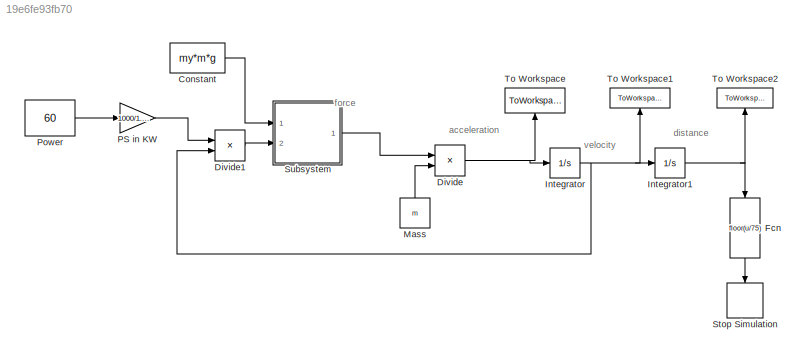
MODEL slx_19e6fe93fb70
KIND model
CONFIG AbsTol = auto
CONFIG EnableMultiTasking = off
CONFIG FixedStep = auto
CONFIG MaxStep = auto
CONFIG MinStep = auto
CONFIG RelTol = 1e-3
CONFIG SampleTimeConstraint = Unconstrained
CONFIG Solver = VariableStepAuto
CONFIG SolverName = VariableStepAuto
CONFIG StartTime = 0.0
CONFIG StopTime = 10.0
BLOCK [Constant] Constant
  Value = my*m*g
BLOCK [Product] Divide
  InputSameDT = off
  Inputs = */
  OutDataTypeStr = Inherit: Inherit via internal rule
  Ports = [2, 1]
  RndMeth = Floor
  SaturateOnIntegerOverflow = off
BLOCK [Product] Divide1
  InputSameDT = off
  Inputs = */
  OutDataTypeStr = Inherit: Inherit via internal rule
  Ports = [2, 1]
  RndMeth = Floor
  SaturateOnIntegerOverflow = off
BLOCK [Fcn] Fcn
  Expr = floor(u/75)
BLOCK [Integrator] Integrator
  InitialCondition = 0.01
  Ports = [1, 1]
BLOCK [Integrator] Integrator1
  Ports = [1, 1]
BLOCK [Constant] Mass 
  Value = m
  VectorParams1D = off
BLOCK [Gain] PS in KW 
  Gain = 1000/1.35962
  OutDataTypeStr = Inherit: Inherit via internal rule
  ParamDataTypeStr = Inherit: Inherit via internal rule
  SaturateOnIntegerOverflow = off
BLOCK [Constant] Power 
  Value = 60
BLOCK [Stop] Stop Simulation
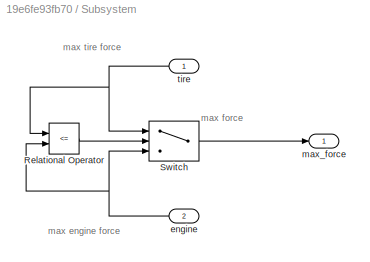
BLOCK [SubSystem] Subsystem
  Ports = [2, 1]
  RequestExecContextInheritance = off
BLOCK [RelationalOperator] Subsystem/Relational Operator
  InputSameDT = off
  Operator = <=
  OutDataTypeStr = boolean
  Ports = [2, 1]
  RndMeth = Simplest
BLOCK [Switch] Subsystem/Switch
  Criteria = u2 > Threshold
  InputSameDT = off
  SaturateOnIntegerOverflow = off
BLOCK [Inport] Subsystem/engine
  IconDisplay = Port number
  Port = 2
BLOCK [Outport] Subsystem/max_force
  IconDisplay = Port number
BLOCK [Inport] Subsystem/tire
  IconDisplay = Port number
BLOCK [ToWorkspace] To Workspace
  FixptAsFi = on
  MaxDataPoints = inf
  Ports = [1]
  SampleTime = -1
  VariableName = acceleration
BLOCK [ToWorkspace] To Workspace1
  FixptAsFi = on
  MaxDataPoints = inf
  Ports = [1]
  SampleTime = -1
  VariableName = velocity
BLOCK [ToWorkspace] To Workspace2
  FixptAsFi = on
  MaxDataPoints = inf
  Ports = [1]
  SampleTime = -1
  VariableName = distance
ANNOTATION (root): acceleration
ANNOTATION (root): distance
ANNOTATION (root): force
ANNOTATION (root): velocity
ANNOTATION Subsystem: max engine force
ANNOTATION Subsystem: max force
ANNOTATION Subsystem: max tire force
LINE Constant:1 -> Subsystem:1
LINE Divide1:1 -> Subsystem:2
NET Divide:1 -> Integrator:1, To Workspace:1
LINE Fcn:1 -> Stop Simulation:1
NET Integrator1:1 -> Fcn:1, To Workspace2:1
NET Integrator:1 -> Divide1:2, Integrator1:1, To Workspace1:1
LINE Mass :1 -> Divide:2
LINE PS in KW :1 -> Divide1:1
LINE Power :1 -> PS in KW :1
LINE Subsystem/Relational Operator:1 -> Subsystem/Switch:2
LINE Subsystem/Switch:1 -> Subsystem/max_force:1
NET Subsystem/engine:1 -> Subsystem/Relational Operator:2, Subsystem/Switch:3
NET Subsystem/tire:1 -> Subsystem/Relational Operator:1, Subsystem/Switch:1
LINE Subsystem:1 -> Divide:1
note: NET lines group one-source signal fan-out (src -> all destinations, sorted); 1:1 wires keep LINE
